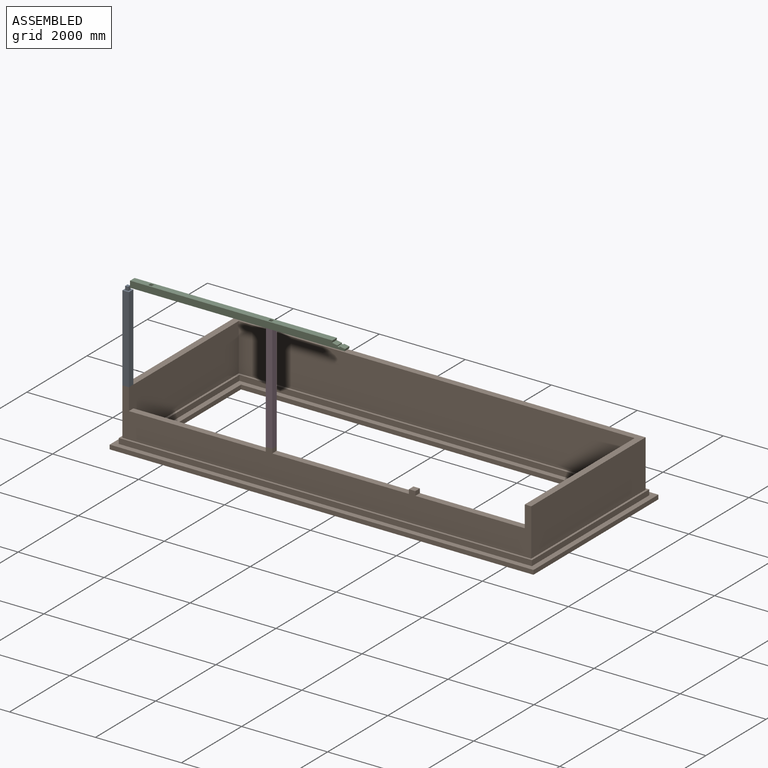
[diagram: assembled view]
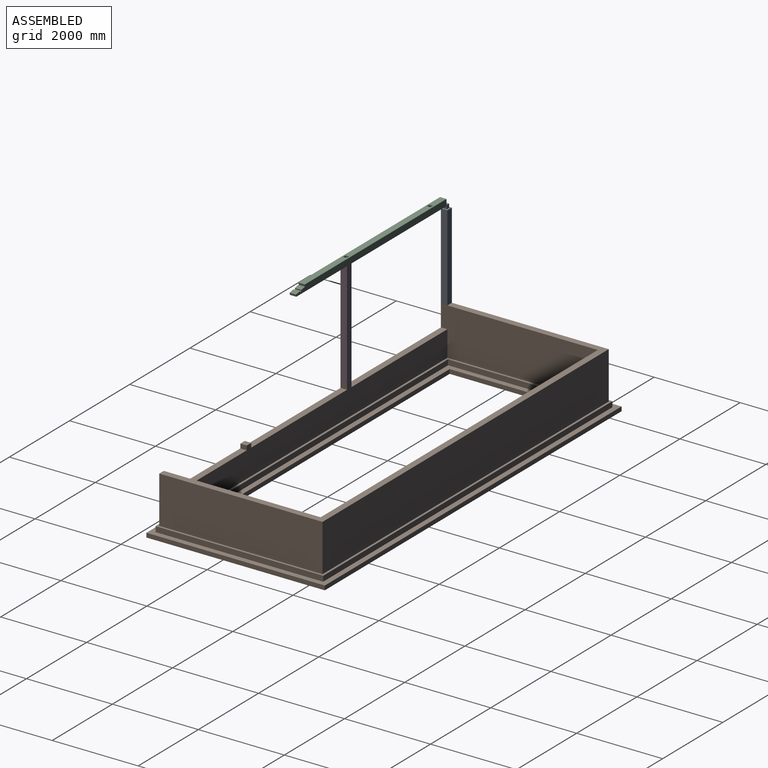
[diagram: assembled view, second angle]
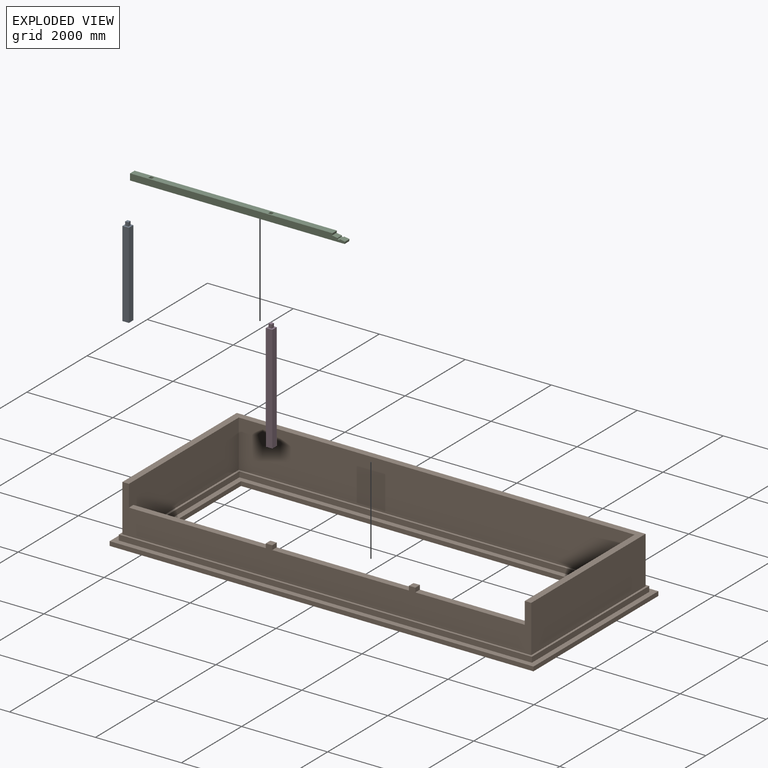
[diagram: exploded view]
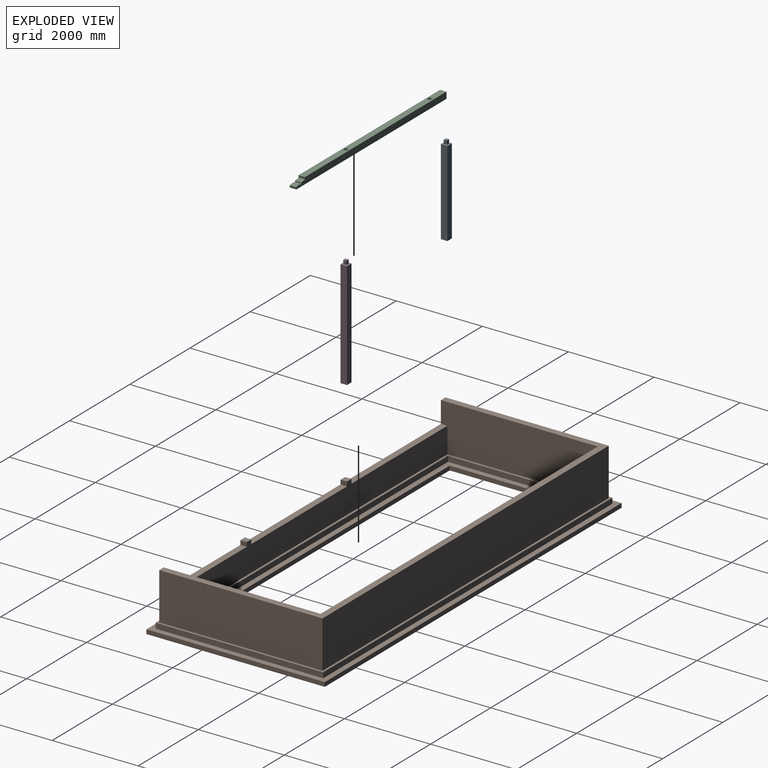
[diagram: exploded view, second angle]
ASSEMBLY  parts=4 mates=9
PART A: 11 faces, bbox 150x150x2090 mm
  f0: plane 150x150mm, normal (0,0,1), area 16875mm2, adj f1,f2,f3,f4,f6,f7,f8,f9
  f1: plane 2000x150mm, normal (0,-1,0), area 300000mm2, adj f0,f2,f4,f5
  f2: plane 2000x150mm, normal (1,0,0), area 300000mm2, adj f0,f1,f3,f5
  f3: plane 2000x150mm, normal (0,1,0), area 300000mm2, adj f0,f2,f4,f5
  f4: plane 2000x150mm, normal (-1,0,0), area 300000mm2, adj f0,f1,f3,f5
  f5: plane 150x150mm, normal (0,0,-1), area 22500mm2, adj f1,f2,f3,f4
  f6: plane 90x75mm, normal (0,-1,0), area 6750mm2, adj f0,f7,f9,f10
  f7: plane 90x75mm, normal (1,0,0), area 6750mm2, adj f0,f6,f8,f10
  f8: plane 90x75mm, normal (0,1,0), area 6750mm2, adj f0,f7,f9,f10
  f9: plane 90x75mm, normal (-1,0,0), area 6750mm2, adj f0,f6,f8,f10
  f10: plane 75x75mm, normal (0,0,1), area 5625mm2, adj f6,f7,f8,f9
PART B: 39 faces, bbox 9860x4150x1325 mm
  f0: plane 2545x150mm, normal (0,0,1), area 381750mm2, adj f23,f26,f31,f36
  f1: plane 3180x150mm, normal (0,0,1), area 477000mm2, adj f23,f31,f33,f37
  f2: plane 9210x3500mm, normal (0,0,1), area 1261000mm2, adj f18,f19,f20,f21,f24,f25,f26,f31
  f3: plane 9610x3900mm, normal (0,0,1), area 1341000mm2, adj f15,f16,f17,f22,f23,f27,f28,f29
  f4: plane 9110x3400mm, normal (0,0,1), area 3065000mm2, adj f9,f10,f11,f12,f18,f19,f20,f21
  f5: plane 9860x4150mm, normal (0,0,1), area 3440000mm2, adj f6,f7,f8,f13,f15,f16,f17,f22
  f6: plane 9860x100mm, normal (0,-1,0), area 986000mm2, adj f5,f7,f13,f14
  f7: plane 4150x100mm, normal (1,0,0), area 415000mm2, adj f5,f6,f8,f14
  f8: plane 9860x100mm, normal (0,1,0), area 986000mm2, adj f5,f7,f13,f14
  f9: plane 8860x100mm, normal (0,1,0), area 886000mm2, adj f4,f10,f12,f14
  f10: plane 3150x100mm, normal (1,0,0), area 315000mm2, adj f4,f9,f11,f14
  f11: plane 8860x100mm, normal (0,-1,0), area 886000mm2, adj f4,f10,f12,f14
  f12: plane 3150x100mm, normal (-1,0,0), area 315000mm2, adj f4,f9,f11,f14
  f13: plane 4150x100mm, normal (-1,0,0), area 415000mm2, adj f5,f6,f8,f14
  f14: plane 9860x4150mm, normal (0,0,-1), area 13010000mm2, adj f6,f7,f8,f9,f10,f11,f12,f13
  f15: plane 3900x125mm, normal (-1,0,0), area 487500mm2, adj f3,f5,f16,f22
  f16: plane 9610x125mm, normal (0,-1,0), area 1201250mm2, adj f3,f5,f15,f17
  f17: plane 3900x125mm, normal (1,0,0), area 487500mm2, adj f3,f5,f16,f22
  f18: plane 9110x125mm, normal (0,1,0), area 1138750mm2, adj f2,f4,f19,f21
  f19: plane 3400x125mm, normal (1,0,0), area 425000mm2, adj f2,f4,f18,f20
  f20: plane 9110x125mm, normal (0,-1,0), area 1138750mm2, adj f2,f4,f19,f21
  f21: plane 3400x125mm, normal (-1,0,0), area 425000mm2, adj f2,f4,f18,f20
  f22: plane 9610x125mm, normal (0,1,0), area 1201250mm2, adj f3,f5,f15,f17
  f23: plane 9510x1100mm, normal (0,-1,0), area 5886000mm2, adj f0,f1,f3,f24,f26,f27,f29,f30
  f24: plane 3650x1100mm, normal (1,0,0), area 3925000mm2, adj f2,f23,f25,f30,f31,f32
  f25: plane 9210x1100mm, normal (0,-1,0), area 10131000mm2, adj f2,f24,f26,f30
  f26: plane 3650x1100mm, normal (-1,0,0), area 3925000mm2, adj f0,f2,f23,f25,f30,f31
  f27: plane 3800x1100mm, normal (1,0,0), area 4180000mm2, adj f3,f23,f28,f30
  f28: plane 9510x1100mm, normal (0,1,0), area 10461000mm2, adj f3,f27,f29,f30
  f29: plane 3800x1100mm, normal (-1,0,0), area 4180000mm2, adj f3,f23,f28,f30
  f30: plane 9510x3800mm, normal (0,0,1), area 2521500mm2, adj f23,f24,f25,f26,f27,f28,f29
  f31: plane 9210x700mm, normal (0,1,0), area 5556000mm2, adj f0,f1,f2,f24,f26,f32,f33,f34
  f32: plane 3185x150mm, normal (0,0,1), area 477750mm2, adj f23,f24,f31,f34
  f33: plane 150x100mm, normal (1,0,0), area 15000mm2, adj f1,f23,f31,f35
  f34: plane 150x100mm, normal (-1,0,0), area 15000mm2, adj f23,f31,f32,f35
  f35: plane 150x150mm, normal (0,0,1), area 22500mm2, adj f23,f31,f33,f34
  f36: plane 150x100mm, normal (1,0,0), area 15000mm2, adj f0,f23,f31,f38
  f37: plane 150x100mm, normal (-1,0,0), area 15000mm2, adj f1,f23,f31,f38
  f38: plane 150x150mm, normal (0,0,1), area 22500mm2, adj f23,f31,f36,f37
PART C: 20 faces, bbox 5000x150x150 mm
  f0: plane 4991.44x150mm, normal (0,0,-1), area 735915.9mm2, adj f2,f3,f4,f11,f12,f13,f14,f15
  f1: plane 4708.56x150mm, normal (0,0,1), area 693484.1mm2, adj f2,f3,f4,f5,f12,f13,f14,f15
  f2: plane 5000x150mm, normal (0,-1,0), area 726250mm2, adj f0,f1,f4,f5,f6,f7,f8,f9
  f3: plane 5000x150mm, normal (0,1,0), area 726250mm2, adj f0,f1,f4,f5,f6,f7,f8,f9
  f4: plane 150x150mm, normal (-1,0,0), area 22500mm2, adj f0,f1,f2,f3
  f5: plane 150x48.55mm, normal (0.98,0,-0.17), area 7395mm2, adj f1,f2,f3,f6
  f6: plane 150x125.38mm, normal (0.17,0,0.98), area 19097.1mm2, adj f2,f3,f5,f7
  f7: plane 150x24.62mm, normal (0.98,0,-0.17), area 3750mm2, adj f2,f3,f6,f8
  f8: plane 150x49.24mm, normal (0.17,0,0.98), area 7500mm2, adj f2,f3,f7,f9
  f9: plane 150x24.62mm, normal (-0.98,0,0.17), area 3750mm2, adj f2,f3,f8,f10
  f10: plane 150x125.38mm, normal (0.17,0,0.98), area 19097.1mm2, adj f2,f3,f9,f11
  f11: plane 150x48.55mm, normal (0.98,0,-0.17), area 7395mm2, adj f0,f2,f3,f10
  f12: plane 150x80mm, normal (1,0,0), area 12000mm2, adj f0,f1,f13,f15
  f13: plane 150x80mm, normal (0,1,0), area 12000mm2, adj f0,f1,f12,f14
  f14: plane 150x80mm, normal (-1,0,0), area 12000mm2, adj f0,f1,f13,f15
  f15: plane 150x80mm, normal (0,-1,0), area 12000mm2, adj f0,f1,f12,f14
  f16: plane 150x80mm, normal (-1,0,0), area 12000mm2, adj f0,f1,f17,f18
  f17: plane 150x80mm, normal (0,1,0), area 12000mm2, adj f0,f1,f16,f19
  f18: plane 150x80mm, normal (0,-1,0), area 12000mm2, adj f0,f1,f16,f19
  f19: plane 150x80mm, normal (1,0,0), area 12000mm2, adj f0,f1,f17,f18
PART D: 11 faces, bbox 150x150x2590 mm
  f0: plane 150x150mm, normal (0,0,1), area 16875mm2, adj f1,f2,f3,f4,f6,f7,f8,f9
  f1: plane 2500x150mm, normal (0,-1,0), area 375000mm2, adj f0,f2,f4,f5
  f2: plane 2500x150mm, normal (1,0,0), area 375000mm2, adj f0,f1,f3,f5
  f3: plane 2500x150mm, normal (0,1,0), area 375000mm2, adj f0,f2,f4,f5
  f4: plane 2500x150mm, normal (-1,0,0), area 375000mm2, adj f0,f1,f3,f5
  f5: plane 150x150mm, normal (0,0,-1), area 22500mm2, adj f1,f2,f3,f4
  f6: plane 90x75mm, normal (0,-1,0), area 6750mm2, adj f0,f7,f9,f10
  f7: plane 90x75mm, normal (1,0,0), area 6750mm2, adj f0,f6,f8,f10
  f8: plane 90x75mm, normal (0,1,0), area 6750mm2, adj f0,f7,f9,f10
  f9: plane 90x75mm, normal (-1,0,0), area 6750mm2, adj f0,f6,f8,f10
  f10: plane 75x75mm, normal (0,0,1), area 5625mm2, adj f6,f7,f8,f9
PLACE A t=(-4271.37,1178.79,4298.08)mm
PLACE B t=(-1301.37,928.79,2973.08)mm
PLACE C t=(-4168.87,1178.79,6473.08)mm
PLACE D t=(-936.37,1178.79,3898.08)mm
MATE planar B.f35 <-> D.f5  axis (0,0,1) through (-936.37,1178.79,3898.08)mm
MATE planar B.f23 <-> D.f1  axis (0,-1,0) through (-861.37,1103.79,3798.08)mm
MATE planar C.f0 <-> D.f0  axis (0,0,-1) through (-1661.66,1178.79,6398.08)mm
MATE planar D.f7 <-> C.f14  axis (1,0,0) through (-898.87,1178.79,6443.08)mm
MATE planar B.f30 <-> A.f5  axis (0,0,1) through (408.63,4003.68,4298.08)mm
MATE planar D.f2 <-> B.f33  axis (1,0,0) through (-861.37,1178.79,5148.08)mm
MATE planar C.f2 <-> D.f1  axis (0,-1,0) through (-1746.35,1103.79,6472.02)mm
MATE planar B.f23 <-> A.f1  axis (0,-1,0) through (-2603.87,1103.79,3798.08)mm
MATE planar B.f29 <-> A.f4  axis (-1,0,0) through (-4346.37,1103.79,4298.08)mm
